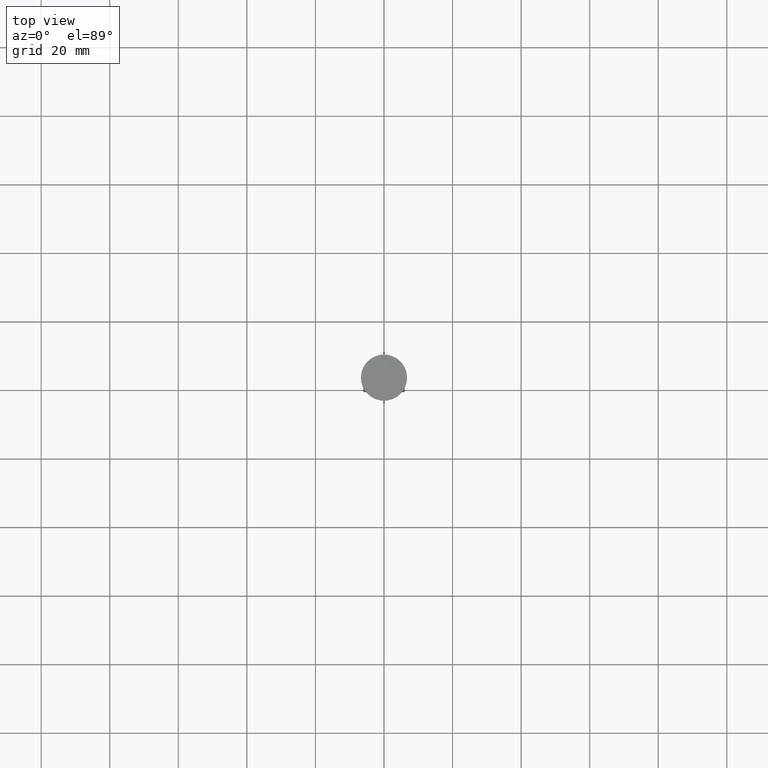
[diagram: clean part render]
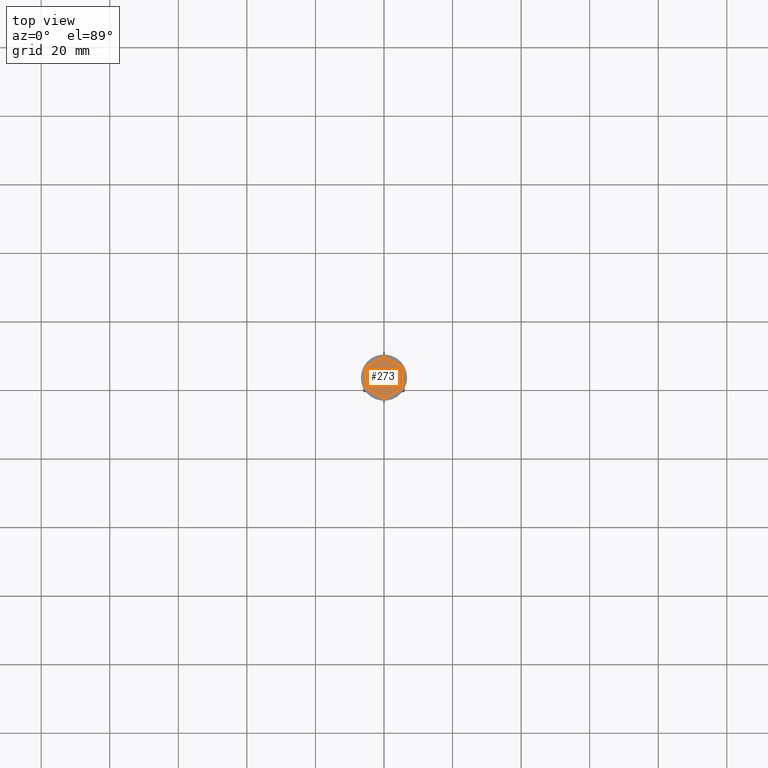
[diagram: same view with one face highlighted and labeled with its STEP entity id]
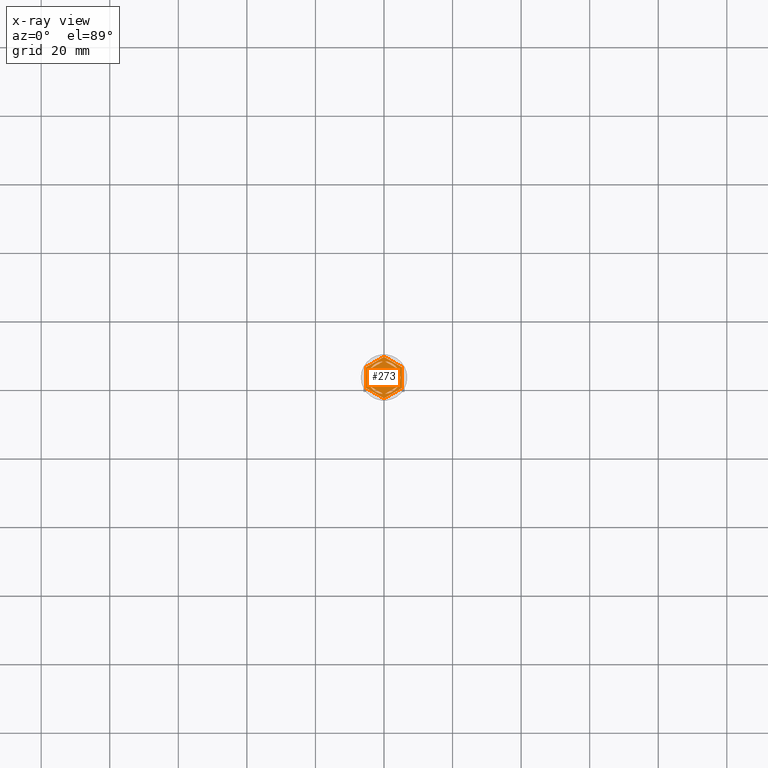
[diagram: x-ray of the same camera — body ghosted, the highlighted face saturated]
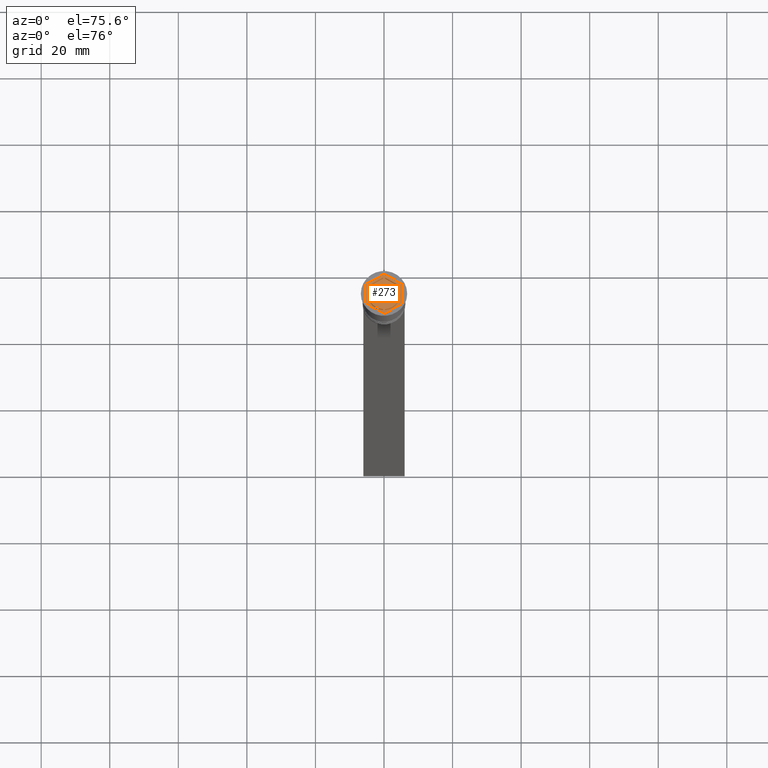
[diagram: same view with one face highlighted and labeled with its STEP entity id]
A machine part, top view. The second image highlights one B-rep face of the part: STEP entity #273.
The next image is the same camera in x-ray: the body ghosted, the highlighted face saturated — about 0% of this face is hidden behind the body in this view.
A second angle (auxiliary view) of the same face is appended — the face is thin or edge-on in the first view.
In plain terms, the highlighted planar face has unit normal (0, 0, 1).
Its self-contained STEP definition (entity closure, byte-faithful):
#16 = ORIENTED_EDGE ( 'NONE', *, *, #511, .F. ) ;
#17 = EDGE_CURVE ( 'NONE', #998, #672, #560, .T. ) ;
#19 = AXIS2_PLACEMENT_3D ( 'NONE', #529, #2166, #743 ) ;
#27 = EDGE_CURVE ( 'NONE', #865, #1465, #1898, .T. ) ;
#37 = CARTESIAN_POINT ( 'NONE',  ( 0.2878826929126145906, 4.741268137863685617, -1.000000000000000888 ) ) ;
#78 = VERTEX_POINT ( 'NONE', #96 ) ;
#81 = ORIENTED_EDGE ( 'NONE', *, *, #1981, .F. ) ;
#85 = CARTESIAN_POINT ( 'NONE',  ( 8.729740977282959667E-16, -6.062177826491071286, -1.000000000000000000 ) ) ;
#92 = LINE ( 'NONE', #618, #1319 ) ;
#94 = AXIS2_PLACEMENT_3D ( 'NONE', #1914, #1781, #1165 ) ;
#96 = CARTESIAN_POINT ( 'NONE',  ( -4.250000000000000000, 2.121320343559643717, -1.000000000000000888 ) ) ;
#101 = CARTESIAN_POINT ( 'NONE',  ( 0.2878826929126150347, -4.741268137863686505, -1.000000000000000888 ) ) ;
#121 = CARTESIAN_POINT ( 'NONE',  ( 4.250000000000000000, 2.453738644055910800, -1.000000000000000888 ) ) ;
#125 = VERTEX_POINT ( 'NONE', #404 ) ;
#142 = VECTOR ( 'NONE', #1849, 1000.000000000000227 ) ;
#174 = VECTOR ( 'NONE', #663, 1000.000000000000000 ) ;
#179 = VERTEX_POINT ( 'NONE', #1854 ) ;
#198 = CARTESIAN_POINT ( 'NONE',  ( 0.000000000000000000, 0.000000000000000000, -1.000000000000000000 ) ) ;
#202 = CARTESIAN_POINT ( 'NONE',  ( 3.962117307087384521, 2.619947794304043232, -1.000000000000000888 ) ) ;
#212 = ORIENTED_EDGE ( 'NONE', *, *, #2259, .T. ) ;
#227 = CARTESIAN_POINT ( 'NONE',  ( 4.249999999999999112, 2.121320343559644162, -1.000000000000000888 ) ) ;
#256 = AXIS2_PLACEMENT_3D ( 'NONE', #660, #461, #1182 ) ;
#264 = DIRECTION ( 'NONE',  ( -0.8660254037844385966, 0.5000000000000001110, 0.000000000000000000 ) ) ;
#273 = ADVANCED_FACE ( 'NONE', ( #1181, #1194, #853, #1038, #1730, #670, #2286 ), #2148, .T. ) ;
#299 = CARTESIAN_POINT ( 'NONE',  ( 4.249999999999999112, -2.453738644055910356, -1.000000000000000888 ) ) ;
#304 = CARTESIAN_POINT ( 'NONE',  ( -5.250000000000000888, 3.031088913245535643, -1.000000000000000000 ) ) ;
#331 = ORIENTED_EDGE ( 'NONE', *, *, #2205, .T. ) ;
#375 = EDGE_LOOP ( 'NONE', ( #1463, #863, #2208 ) ) ;
#397 = DIRECTION ( 'NONE',  ( 0.000000000000000000, 0.000000000000000000, 1.000000000000000000 ) ) ;
#404 = CARTESIAN_POINT ( 'NONE',  ( -0.2878826929126160894, 4.741268137863686505, -1.000000000000000888 ) ) ;
#412 = CARTESIAN_POINT ( 'NONE',  ( 0.000000000000000000, 0.000000000000000000, -1.000000000000000000 ) ) ;
#420 = CARTESIAN_POINT ( 'NONE',  ( 3.962117307087384521, -2.619947794304042787, -1.000000000000000888 ) ) ;
#424 = VECTOR ( 'NONE', #2189, 1000.000000000000114 ) ;
#428 = CIRCLE ( 'NONE', #19, 4.750000000000000888 ) ;
#436 = LINE ( 'NONE', #788, #142 ) ;
#443 = EDGE_CURVE ( 'NONE', #78, #965, #428, .T. ) ;
#444 = LINE ( 'NONE', #121, #174 ) ;
#458 = ORIENTED_EDGE ( 'NONE', *, *, #17, .F. ) ;
#461 = DIRECTION ( 'NONE',  ( 0.000000000000000000, 0.000000000000000000, 1.000000000000000000 ) ) ;
#511 = EDGE_CURVE ( 'NONE', #844, #125, #1835, .T. ) ;
#529 = CARTESIAN_POINT ( 'NONE',  ( 0.000000000000000000, 0.000000000000000000, -1.000000000000000000 ) ) ;
#546 = EDGE_LOOP ( 'NONE', ( #1477, #81 ) ) ;
#558 = VERTEX_POINT ( 'NONE', #1294 ) ;
#560 = LINE ( 'NONE', #1290, #1991 ) ;
#563 = ORIENTED_EDGE ( 'NONE', *, *, #1127, .F. ) ;
#567 = CARTESIAN_POINT ( 'NONE',  ( 0.000000000000000000, 0.000000000000000000, -1.000000000000000000 ) ) ;
#593 = EDGE_LOOP ( 'NONE', ( #1256, #563 ) ) ;
#607 = DIRECTION ( 'NONE',  ( -0.8660254037844387076, -0.4999999999999999445, 0.000000000000000000 ) ) ;
#618 = CARTESIAN_POINT ( 'NONE',  ( -4.250000000000000000, 2.453738644055909468, -1.000000000000000888 ) ) ;
#620 = VERTEX_POINT ( 'NONE', #1306 ) ;
#621 = LINE ( 'NONE', #304, #1380 ) ;
#643 = LINE ( 'NONE', #299, #973 ) ;
#655 = EDGE_CURVE ( 'NONE', #179, #1579, #1343, .T. ) ;
#660 = CARTESIAN_POINT ( 'NONE',  ( 0.000000000000000000, 0.000000000000000000, -1.000000000000000000 ) ) ;
#663 = DIRECTION ( 'NONE',  ( 0.8660254037844387076, -0.4999999999999998335, 0.000000000000000000 ) ) ;
#670 = FACE_BOUND ( 'NONE', #2305, .T. ) ;
#672 = VERTEX_POINT ( 'NONE', #101 ) ;
#687 = CIRCLE ( 'NONE', #2040, 4.750000000000000888 ) ;
#743 = DIRECTION ( 'NONE',  ( 1.000000000000000000, 0.000000000000000000, 0.000000000000000000 ) ) ;
#748 = ORIENTED_EDGE ( 'NONE', *, *, #1437, .T. ) ;
#783 = DIRECTION ( 'NONE',  ( 0.000000000000000000, 1.000000000000000000, 0.000000000000000000 ) ) ;
#788 = CARTESIAN_POINT ( 'NONE',  ( 0.000000000000000000, 6.062177826491072175, -1.000000000000000000 ) ) ;
#844 = VERTEX_POINT ( 'NONE', #1251 ) ;
#853 = FACE_BOUND ( 'NONE', #991, .T. ) ;
#855 = CIRCLE ( 'NONE', #256, 4.750000000000000888 ) ;
#863 = ORIENTED_EDGE ( 'NONE', *, *, #1430, .F. ) ;
#865 = VERTEX_POINT ( 'NONE', #884 ) ;
#884 = CARTESIAN_POINT ( 'NONE',  ( 8.729740977282959667E-16, -6.062177826491071286, -1.000000000000000000 ) ) ;
#885 = LINE ( 'NONE', #1977, #931 ) ;
#906 = EDGE_CURVE ( 'NONE', #965, #620, #687, .T. ) ;
#924 = ORIENTED_EDGE ( 'NONE', *, *, #1286, .F. ) ;
#931 = VECTOR ( 'NONE', #1632, 1000.000000000000000 ) ;
#943 = ORIENTED_EDGE ( 'NONE', *, *, #2336, .F. ) ;
#965 = VERTEX_POINT ( 'NONE', #1316 ) ;
#973 = VECTOR ( 'NONE', #1545, 1000.000000000000000 ) ;
#985 = CARTESIAN_POINT ( 'NONE',  ( -5.250000000000000888, 3.031088913245535643, -1.000000000000000000 ) ) ;
#991 = EDGE_LOOP ( 'NONE', ( #924, #458 ) ) ;
#998 = VERTEX_POINT ( 'NONE', #420 ) ;
#1038 = FACE_BOUND ( 'NONE', #1174, .T. ) ;
#1057 = VERTEX_POINT ( 'NONE', #227 ) ;
#1076 = DIRECTION ( 'NONE',  ( 0.000000000000000000, 0.000000000000000000, 1.000000000000000000 ) ) ;
#1088 = DIRECTION ( 'NONE',  ( 1.000000000000000000, 0.000000000000000000, 0.000000000000000000 ) ) ;
#1094 = CARTESIAN_POINT ( 'NONE',  ( 0.000000000000000000, 0.000000000000000000, -1.000000000000000000 ) ) ;
#1122 = DIRECTION ( 'NONE',  ( 1.000000000000000000, 0.000000000000000000, 0.000000000000000000 ) ) ;
#1127 = EDGE_CURVE ( 'NONE', #1353, #2132, #444, .T. ) ;
#1148 = VERTEX_POINT ( 'NONE', #2113 ) ;
#1150 = CARTESIAN_POINT ( 'NONE',  ( -4.250000000000000000, -2.453738644055909912, -1.000000000000000888 ) ) ;
#1165 = DIRECTION ( 'NONE',  ( 1.000000000000000000, 0.000000000000000000, -0.000000000000000000 ) ) ;
#1174 = EDGE_LOOP ( 'NONE', ( #943, #1649 ) ) ;
#1181 = FACE_BOUND ( 'NONE', #593, .T. ) ;
#1182 = DIRECTION ( 'NONE',  ( 1.000000000000000000, 0.000000000000000000, 0.000000000000000000 ) ) ;
#1192 = EDGE_CURVE ( 'NONE', #1432, #1148, #621, .T. ) ;
#1194 = FACE_BOUND ( 'NONE', #546, .T. ) ;
#1202 = EDGE_LOOP ( 'NONE', ( #1618, #212, #2197, #331, #2261, #748 ) ) ;
#1221 = CIRCLE ( 'NONE', #2180, 4.750000000000000888 ) ;
#1251 = CARTESIAN_POINT ( 'NONE',  ( -3.962117307087385409, 2.619947794304041899, -1.000000000000000888 ) ) ;
#1256 = ORIENTED_EDGE ( 'NONE', *, *, #1741, .F. ) ;
#1260 = DIRECTION ( 'NONE',  ( 1.000000000000000000, 0.000000000000000000, 0.000000000000000000 ) ) ;
#1285 = CARTESIAN_POINT ( 'NONE',  ( 0.000000000000000000, 0.000000000000000000, -1.000000000000000000 ) ) ;
#1286 = EDGE_CURVE ( 'NONE', #672, #998, #1221, .T. ) ;
#1288 = CARTESIAN_POINT ( 'NONE',  ( 4.249999999999999112, -2.121320343559645938, -1.000000000000000888 ) ) ;
#1290 = CARTESIAN_POINT ( 'NONE',  ( -8.673617379884035472E-16, -4.907477288111819824, -1.000000000000000888 ) ) ;
#1294 = CARTESIAN_POINT ( 'NONE',  ( 0.000000000000000000, 6.062177826491072175, -1.000000000000000000 ) ) ;
#1302 = VERTEX_POINT ( 'NONE', #1288 ) ;
#1306 = CARTESIAN_POINT ( 'NONE',  ( -4.250000000000000000, -2.121320343559643717, -1.000000000000000888 ) ) ;
#1316 = CARTESIAN_POINT ( 'NONE',  ( -4.750000000000000888, 0.000000000000000000, -1.000000000000000000 ) ) ;
#1319 = VECTOR ( 'NONE', #783, 1000.000000000000000 ) ;
#1343 = LINE ( 'NONE', #1150, #2335 ) ;
#1352 = CIRCLE ( 'NONE', #2013, 4.750000000000000888 ) ;
#1353 = VERTEX_POINT ( 'NONE', #37 ) ;
#1372 = EDGE_CURVE ( 'NONE', #1302, #1057, #2112, .T. ) ;
#1380 = VECTOR ( 'NONE', #2280, 1000.000000000000000 ) ;
#1430 = EDGE_CURVE ( 'NONE', #620, #78, #92, .T. ) ;
#1432 = VERTEX_POINT ( 'NONE', #985 ) ;
#1437 = EDGE_CURVE ( 'NONE', #1465, #2135, #1718, .T. ) ;
#1463 = ORIENTED_EDGE ( 'NONE', *, *, #443, .F. ) ;
#1465 = VERTEX_POINT ( 'NONE', #2049 ) ;
#1477 = ORIENTED_EDGE ( 'NONE', *, *, #1372, .F. ) ;
#1536 = CARTESIAN_POINT ( 'NONE',  ( 5.250000000000000888, -3.031088913245536087, -1.000000000000000000 ) ) ;
#1545 = DIRECTION ( 'NONE',  ( -1.767428939690775055E-16, -1.000000000000000000, 0.000000000000000000 ) ) ;
#1550 = EDGE_CURVE ( 'NONE', #125, #844, #855, .T. ) ;
#1570 = CARTESIAN_POINT ( 'NONE',  ( -3.962117307087385409, -2.619947794304041899, -1.000000000000000888 ) ) ;
#1579 = VERTEX_POINT ( 'NONE', #1570 ) ;
#1608 = DIRECTION ( 'NONE',  ( 0.000000000000000000, 0.000000000000000000, 1.000000000000000000 ) ) ;
#1618 = ORIENTED_EDGE ( 'NONE', *, *, #1695, .T. ) ;
#1632 = DIRECTION ( 'NONE',  ( 0.8660254037844387076, -0.4999999999999998335, 0.000000000000000000 ) ) ;
#1647 = CARTESIAN_POINT ( 'NONE',  ( 4.336808689942017736E-16, 4.907477288111819824, -1.000000000000000888 ) ) ;
#1649 = ORIENTED_EDGE ( 'NONE', *, *, #655, .F. ) ;
#1667 = DIRECTION ( 'NONE',  ( 1.000000000000000000, 0.000000000000000000, 0.000000000000000000 ) ) ;
#1695 = EDGE_CURVE ( 'NONE', #2135, #558, #1803, .T. ) ;
#1698 = VECTOR ( 'NONE', #2060, 1000.000000000000000 ) ;
#1713 = DIRECTION ( 'NONE',  ( 0.000000000000000000, 0.000000000000000000, 1.000000000000000000 ) ) ;
#1718 = LINE ( 'NONE', #1536, #1698 ) ;
#1730 = FACE_BOUND ( 'NONE', #375, .T. ) ;
#1741 = EDGE_CURVE ( 'NONE', #2132, #1353, #1352, .T. ) ;
#1781 = DIRECTION ( 'NONE',  ( 0.000000000000000000, 0.000000000000000000, 1.000000000000000000 ) ) ;
#1802 = DIRECTION ( 'NONE',  ( 0.8660254037844385966, 0.5000000000000001110, -0.000000000000000000 ) ) ;
#1803 = LINE ( 'NONE', #2159, #2311 ) ;
#1833 = DIRECTION ( 'NONE',  ( 1.000000000000000000, 0.000000000000000000, 0.000000000000000000 ) ) ;
#1835 = LINE ( 'NONE', #1647, #2071 ) ;
#1849 = DIRECTION ( 'NONE',  ( -0.8660254037844385966, -0.5000000000000000000, 0.000000000000000000 ) ) ;
#1851 = DIRECTION ( 'NONE',  ( -0.8660254037844385966, 0.4999999999999998890, 0.000000000000000000 ) ) ;
#1854 = CARTESIAN_POINT ( 'NONE',  ( -0.2878826929126160894, -4.741268137863686505, -1.000000000000000888 ) ) ;
#1898 = LINE ( 'NONE', #85, #424 ) ;
#1914 = CARTESIAN_POINT ( 'NONE',  ( 0.000000000000000000, 0.000000000000000000, -1.000000000000000000 ) ) ;
#1977 = CARTESIAN_POINT ( 'NONE',  ( -5.250000000000000888, -3.031088913245536087, -1.000000000000000000 ) ) ;
#1981 = EDGE_CURVE ( 'NONE', #1057, #1302, #643, .T. ) ;
#1991 = VECTOR ( 'NONE', #607, 1000.000000000000000 ) ;
#2013 = AXIS2_PLACEMENT_3D ( 'NONE', #1285, #1076, #1088 ) ;
#2039 = DIRECTION ( 'NONE',  ( 0.000000000000000000, 0.000000000000000000, 1.000000000000000000 ) ) ;
#2040 = AXIS2_PLACEMENT_3D ( 'NONE', #1094, #1608, #1833 ) ;
#2049 = CARTESIAN_POINT ( 'NONE',  ( 5.250000000000000888, -3.031088913245536087, -1.000000000000000000 ) ) ;
#2051 = AXIS2_PLACEMENT_3D ( 'NONE', #567, #397, #1667 ) ;
#2060 = DIRECTION ( 'NONE',  ( 0.000000000000000000, 1.000000000000000000, 0.000000000000000000 ) ) ;
#2071 = VECTOR ( 'NONE', #1802, 1000.000000000000000 ) ;
#2112 = CIRCLE ( 'NONE', #2051, 4.750000000000000888 ) ;
#2113 = CARTESIAN_POINT ( 'NONE',  ( -5.250000000000000888, -3.031088913245536087, -1.000000000000000000 ) ) ;
#2132 = VERTEX_POINT ( 'NONE', #202 ) ;
#2135 = VERTEX_POINT ( 'NONE', #2200 ) ;
#2146 = ORIENTED_EDGE ( 'NONE', *, *, #1550, .F. ) ;
#2148 = PLANE ( 'NONE',  #94 ) ;
#2159 = CARTESIAN_POINT ( 'NONE',  ( 5.250000000000000888, 3.031088913245536087, -1.000000000000000000 ) ) ;
#2166 = DIRECTION ( 'NONE',  ( 0.000000000000000000, 0.000000000000000000, 1.000000000000000000 ) ) ;
#2180 = AXIS2_PLACEMENT_3D ( 'NONE', #198, #2039, #1260 ) ;
#2189 = DIRECTION ( 'NONE',  ( 0.8660254037844385966, 0.4999999999999999445, 0.000000000000000000 ) ) ;
#2197 = ORIENTED_EDGE ( 'NONE', *, *, #1192, .T. ) ;
#2200 = CARTESIAN_POINT ( 'NONE',  ( 5.250000000000000888, 3.031088913245536087, -1.000000000000000000 ) ) ;
#2205 = EDGE_CURVE ( 'NONE', #1148, #865, #885, .T. ) ;
#2208 = ORIENTED_EDGE ( 'NONE', *, *, #906, .F. ) ;
#2229 = CIRCLE ( 'NONE', #2268, 4.750000000000000888 ) ;
#2259 = EDGE_CURVE ( 'NONE', #558, #1432, #436, .T. ) ;
#2261 = ORIENTED_EDGE ( 'NONE', *, *, #27, .T. ) ;
#2268 = AXIS2_PLACEMENT_3D ( 'NONE', #412, #1713, #1122 ) ;
#2280 = DIRECTION ( 'NONE',  ( 0.000000000000000000, -1.000000000000000000, 0.000000000000000000 ) ) ;
#2286 = FACE_OUTER_BOUND ( 'NONE', #1202, .T. ) ;
#2305 = EDGE_LOOP ( 'NONE', ( #2146, #16 ) ) ;
#2311 = VECTOR ( 'NONE', #1851, 1000.000000000000227 ) ;
#2335 = VECTOR ( 'NONE', #264, 1000.000000000000000 ) ;
#2336 = EDGE_CURVE ( 'NONE', #1579, #179, #2229, .T. ) ;